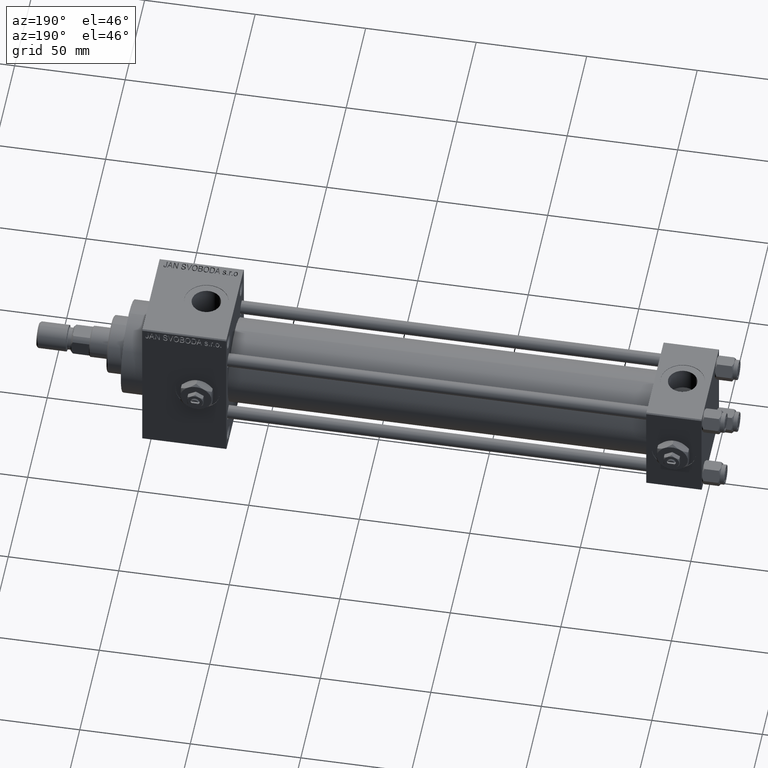
[diagram: clean part render]
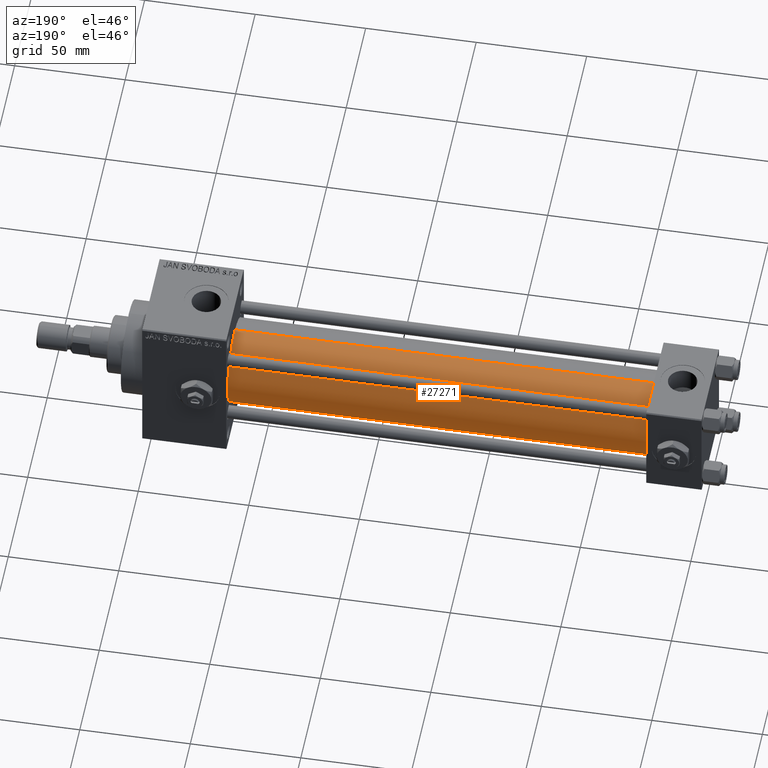
[diagram: same view with one face highlighted and labeled with its STEP entity id]
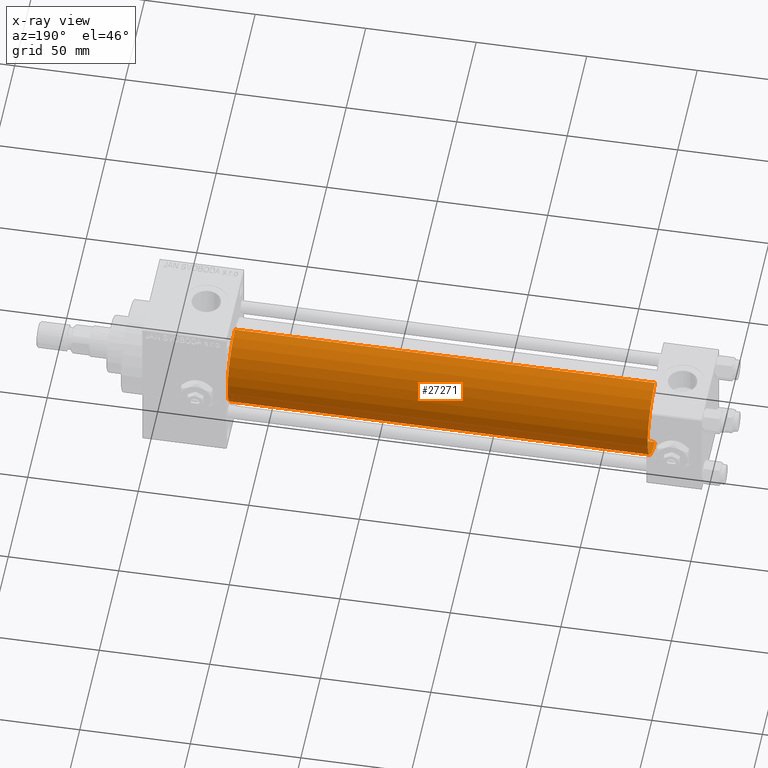
[diagram: x-ray of the same camera — body ghosted, the highlighted face saturated]
A machine part, auxiliary view. The second image highlights one B-rep face of the part: STEP entity #27271.
The next image is the same camera in x-ray: the body ghosted, the highlighted face saturated — about 0% of this face is hidden behind the body in this view.
In plain terms, the highlighted cylindrical surface (partial cylindrical patch) has radius 19 mm, axis along (-1, -0, -0).
Its self-contained STEP definition (entity closure, byte-faithful):
#209 = AXIS2_PLACEMENT_3D ( 'NONE', #48691, #48935, #29813 ) ;
#969 = DIRECTION ( 'NONE',  ( -1.000000000000000000, -0.000000000000000000, -0.000000000000000000 ) ) ;
#986 = ORIENTED_EDGE ( 'NONE', *, *, #49499, .T. ) ;
#1093 = ORIENTED_EDGE ( 'NONE', *, *, #42747, .T. ) ;
#2043 = VERTEX_POINT ( 'NONE', #30552 ) ;
#5761 = LINE ( 'NONE', #28160, #24150 ) ;
#6523 = DIRECTION ( 'NONE',  ( 0.000000000000000000, 0.000000000000000000, -1.000000000000000000 ) ) ;
#10323 = DIRECTION ( 'NONE',  ( 1.000000000000000000, 0.000000000000000000, 0.000000000000000000 ) ) ;
#10757 = VERTEX_POINT ( 'NONE', #40260 ) ;
#10991 = CARTESIAN_POINT ( 'NONE',  ( 215.0000000000000000, -2.752562955852396712E-16, -19.00000000000000000 ) ) ;
#11482 = LINE ( 'NONE', #10991, #20380 ) ;
#12197 = VERTEX_POINT ( 'NONE', #18389 ) ;
#17593 = CARTESIAN_POINT ( 'NONE',  ( 24.99999999999999289, -2.602085213965210642E-15, 0.000000000000000000 ) ) ;
#18004 = FACE_OUTER_BOUND ( 'NONE', #43473, .T. ) ;
#18389 = CARTESIAN_POINT ( 'NONE',  ( 24.99999999999999289, -2.752562955852396712E-16, -19.00000000000000000 ) ) ;
#20380 = VECTOR ( 'NONE', #34136, 1000.000000000000000 ) ;
#22536 = EDGE_CURVE ( 'NONE', #36681, #2043, #5761, .T. ) ;
#22818 = ORIENTED_EDGE ( 'NONE', *, *, #44799, .F. ) ;
#24150 = VECTOR ( 'NONE', #969, 1000.000000000000000 ) ;
#27271 = ADVANCED_FACE ( 'NONE', ( #18004 ), #33592, .T. ) ;
#28160 = CARTESIAN_POINT ( 'NONE',  ( 215.0000000000000000, -2.602085213965210642E-15, 19.00000000000000000 ) ) ;
#29180 = CARTESIAN_POINT ( 'NONE',  ( 215.0000000000000000, -2.602085213965210642E-15, 0.000000000000000000 ) ) ;
#29654 = DIRECTION ( 'NONE',  ( 0.000000000000000000, 0.000000000000000000, 1.000000000000000000 ) ) ;
#29813 = DIRECTION ( 'NONE',  ( 0.000000000000000000, 0.000000000000000000, 1.000000000000000000 ) ) ;
#30552 = CARTESIAN_POINT ( 'NONE',  ( 24.99999999999999289, -2.602085213965210642E-15, 19.00000000000000000 ) ) ;
#32935 = DIRECTION ( 'NONE',  ( 1.000000000000000000, -0.000000000000000000, 0.000000000000000000 ) ) ;
#33592 = CYLINDRICAL_SURFACE ( 'NONE', #209, 19.00000000000000000 ) ;
#34136 = DIRECTION ( 'NONE',  ( -1.000000000000000000, -0.000000000000000000, -0.000000000000000000 ) ) ;
#35760 = CARTESIAN_POINT ( 'NONE',  ( 215.0000000000000000, -2.602085213965210642E-15, 19.00000000000000000 ) ) ;
#36370 = CIRCLE ( 'NONE', #38014, 19.00000000000000000 ) ;
#36681 = VERTEX_POINT ( 'NONE', #35760 ) ;
#38014 = AXIS2_PLACEMENT_3D ( 'NONE', #17593, #32935, #29654 ) ;
#40260 = CARTESIAN_POINT ( 'NONE',  ( 215.0000000000000000, -2.752562955852396712E-16, -19.00000000000000000 ) ) ;
#41164 = CIRCLE ( 'NONE', #47552, 19.00000000000000000 ) ;
#42747 = EDGE_CURVE ( 'NONE', #12197, #2043, #36370, .T. ) ;
#43371 = ORIENTED_EDGE ( 'NONE', *, *, #22536, .F. ) ;
#43473 = EDGE_LOOP ( 'NONE', ( #22818, #986, #1093, #43371 ) ) ;
#44799 = EDGE_CURVE ( 'NONE', #10757, #36681, #41164, .T. ) ;
#47552 = AXIS2_PLACEMENT_3D ( 'NONE', #29180, #10323, #6523 ) ;
#48691 = CARTESIAN_POINT ( 'NONE',  ( 215.0000000000000000, -2.602085213965210642E-15, 0.000000000000000000 ) ) ;
#48935 = DIRECTION ( 'NONE',  ( -1.000000000000000000, -0.000000000000000000, -0.000000000000000000 ) ) ;
#49499 = EDGE_CURVE ( 'NONE', #10757, #12197, #11482, .T. ) ;